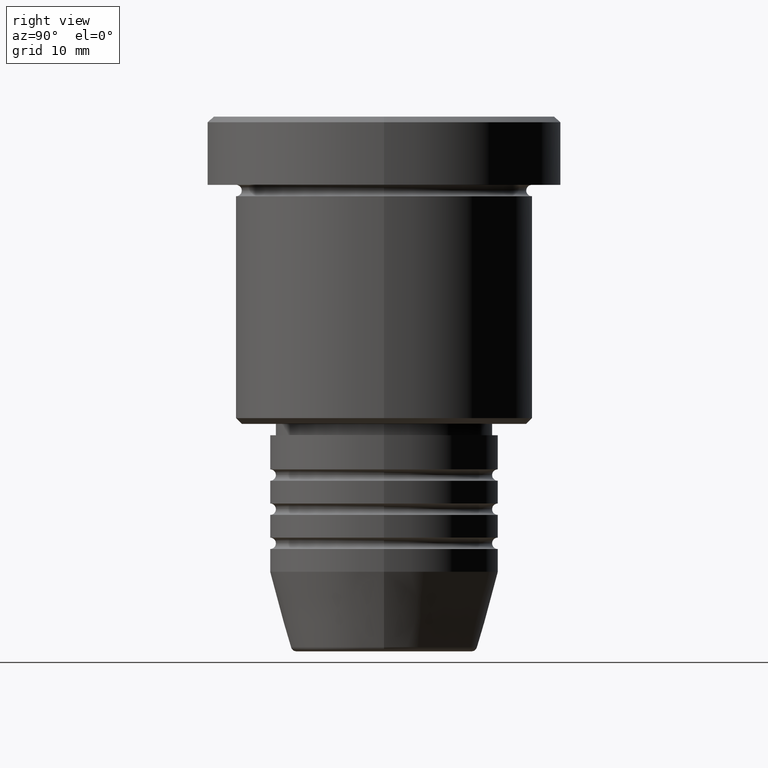
[diagram: clean part render]
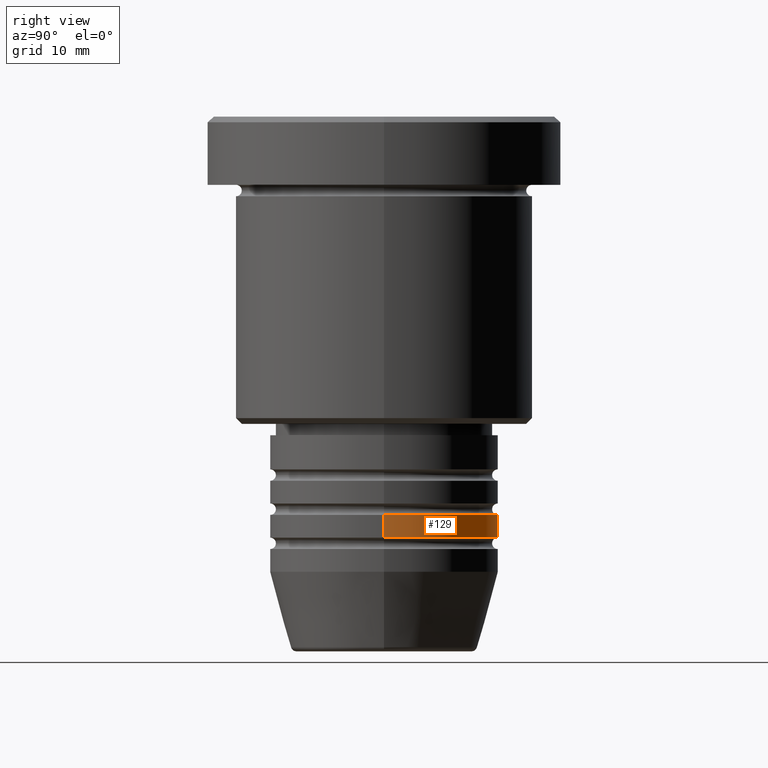
[diagram: same view with one face highlighted and labeled with its STEP entity id]
A machine part, right view. The second image highlights one B-rep face of the part: STEP entity #129.
In plain terms, the highlighted cylindrical surface (partial cylindrical patch) has radius 10 mm, axis along (-0, -0, 1).
Its self-contained STEP definition (entity closure, byte-faithful):
#6 = CARTESIAN_POINT ( 'NONE',  ( 10.00000000000000000, 0.000000000000000000, -36.99999999999998579 ) ) ;
#34 = ORIENTED_EDGE ( 'NONE', *, *, #110, .F. ) ;
#36 = CARTESIAN_POINT ( 'NONE',  ( 10.00000000000000000, 0.000000000000000000, -34.99999999999999289 ) ) ;
#61 = DIRECTION ( 'NONE',  ( 1.000000000000000000, 0.000000000000000000, 0.000000000000000000 ) ) ;
#87 = VERTEX_POINT ( 'NONE', #916 ) ;
#110 = EDGE_CURVE ( 'NONE', #1011, #416, #239, .T. ) ;
#111 = VECTOR ( 'NONE', #606, 1000.000000000000000 ) ;
#129 = ADVANCED_FACE ( 'NONE', ( #719 ), #635, .T. ) ;
#153 = DIRECTION ( 'NONE',  ( -0.000000000000000000, -0.000000000000000000, 1.000000000000000000 ) ) ;
#181 = DIRECTION ( 'NONE',  ( 1.000000000000000000, 0.000000000000000000, 0.000000000000000000 ) ) ;
#195 = EDGE_CURVE ( 'NONE', #326, #1011, #245, .T. ) ;
#239 = CIRCLE ( 'NONE', #1079, 10.00000000000000000 ) ;
#245 = LINE ( 'NONE', #778, #111 ) ;
#256 = VECTOR ( 'NONE', #1052, 1000.000000000000000 ) ;
#299 = EDGE_CURVE ( 'NONE', #87, #416, #1158, .T. ) ;
#325 = CARTESIAN_POINT ( 'NONE',  ( -10.00000000000000000, 1.224646799147353256E-15, 0.000000000000000000 ) ) ;
#326 = VERTEX_POINT ( 'NONE', #6 ) ;
#416 = VERTEX_POINT ( 'NONE', #535 ) ;
#431 = ORIENTED_EDGE ( 'NONE', *, *, #195, .F. ) ;
#535 = CARTESIAN_POINT ( 'NONE',  ( -10.00000000000000000, 1.224646799147353256E-15, -34.99999999999999289 ) ) ;
#562 = AXIS2_PLACEMENT_3D ( 'NONE', #727, #806, #181 ) ;
#598 = ORIENTED_EDGE ( 'NONE', *, *, #793, .T. ) ;
#606 = DIRECTION ( 'NONE',  ( -0.000000000000000000, -0.000000000000000000, 1.000000000000000000 ) ) ;
#635 = CYLINDRICAL_SURFACE ( 'NONE', #562, 10.00000000000000000 ) ;
#647 = DIRECTION ( 'NONE',  ( -0.000000000000000000, -0.000000000000000000, 1.000000000000000000 ) ) ;
#719 = FACE_OUTER_BOUND ( 'NONE', #836, .T. ) ;
#727 = CARTESIAN_POINT ( 'NONE',  ( 0.000000000000000000, 0.000000000000000000, 0.000000000000000000 ) ) ;
#778 = CARTESIAN_POINT ( 'NONE',  ( 10.00000000000000000, 0.000000000000000000, 0.000000000000000000 ) ) ;
#793 = EDGE_CURVE ( 'NONE', #326, #87, #865, .T. ) ;
#806 = DIRECTION ( 'NONE',  ( -0.000000000000000000, -0.000000000000000000, 1.000000000000000000 ) ) ;
#836 = EDGE_LOOP ( 'NONE', ( #598, #915, #34, #431 ) ) ;
#865 = CIRCLE ( 'NONE', #961, 10.00000000000000000 ) ;
#915 = ORIENTED_EDGE ( 'NONE', *, *, #299, .T. ) ;
#916 = CARTESIAN_POINT ( 'NONE',  ( -10.00000000000000000, 1.224646799147353256E-15, -36.99999999999998579 ) ) ;
#931 = CARTESIAN_POINT ( 'NONE',  ( 0.000000000000000000, 0.000000000000000000, -34.99999999999999289 ) ) ;
#961 = AXIS2_PLACEMENT_3D ( 'NONE', #962, #153, #61 ) ;
#962 = CARTESIAN_POINT ( 'NONE',  ( 0.000000000000000000, 0.000000000000000000, -36.99999999999998579 ) ) ;
#1011 = VERTEX_POINT ( 'NONE', #36 ) ;
#1018 = DIRECTION ( 'NONE',  ( 1.000000000000000000, 0.000000000000000000, 0.000000000000000000 ) ) ;
#1052 = DIRECTION ( 'NONE',  ( -0.000000000000000000, -0.000000000000000000, 1.000000000000000000 ) ) ;
#1079 = AXIS2_PLACEMENT_3D ( 'NONE', #931, #647, #1018 ) ;
#1158 = LINE ( 'NONE', #325, #256 ) ;